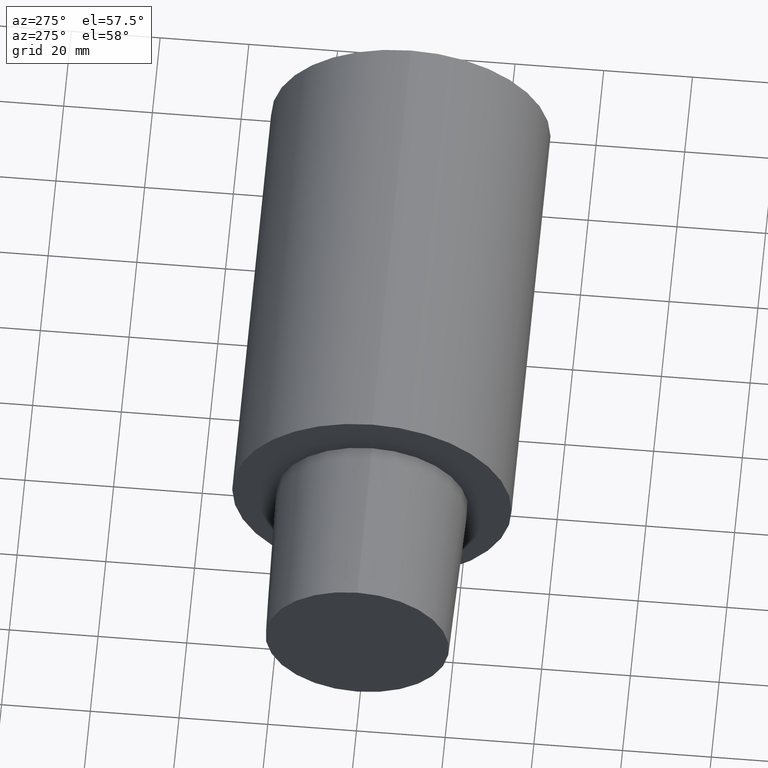
[diagram: clean part render]
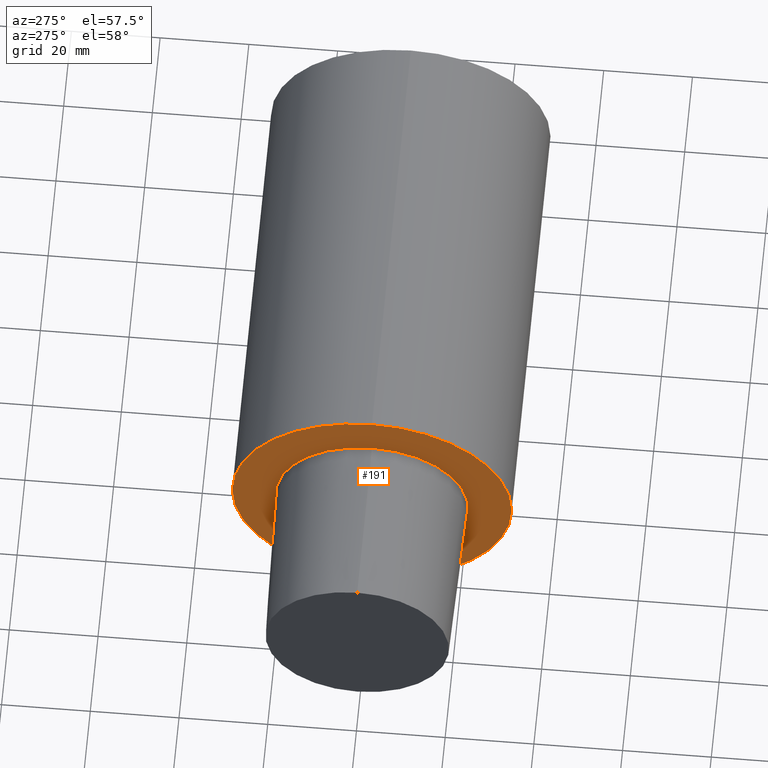
[diagram: same view with one face highlighted and labeled with its STEP entity id]
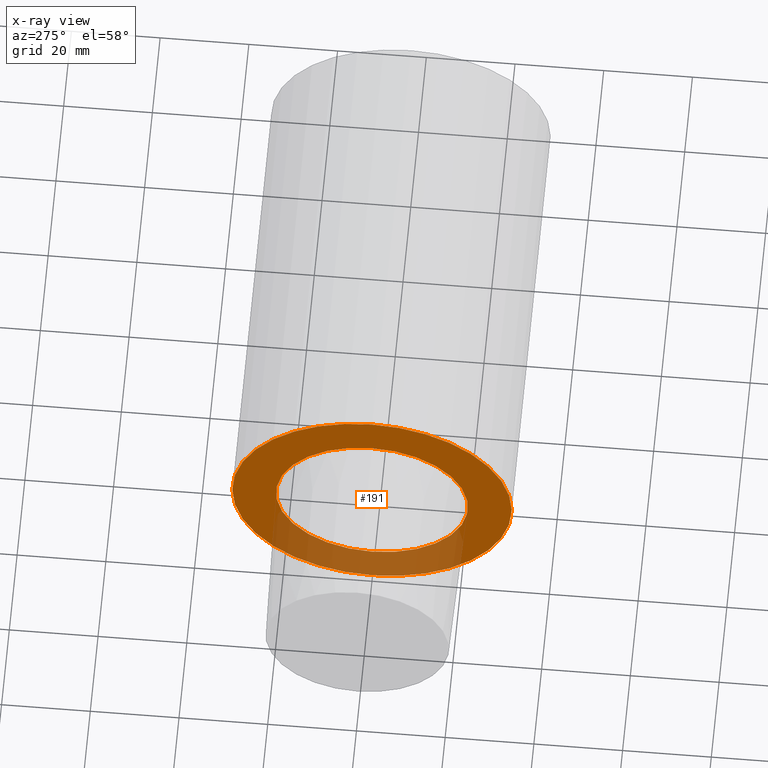
[diagram: x-ray of the same camera — body ghosted, the highlighted face saturated]
A machine part, auxiliary view. The second image highlights one B-rep face of the part: STEP entity #191.
The next image is the same camera in x-ray: the body ghosted, the highlighted face saturated — about 30% of this face is hidden behind the body in this view.
In plain terms, the highlighted planar face has unit normal (1, 0, 0).
Its self-contained STEP definition (entity closure, byte-faithful):
#3 = DIRECTION ( 'NONE',  ( 0.000000000000000000, 0.000000000000000000, 1.000000000000000000 ) ) ;
#6 = AXIS2_PLACEMENT_3D ( 'NONE', #7, #147, #44 ) ;
#7 = CARTESIAN_POINT ( 'NONE',  ( 0.000000000000000000, 31.49999996787000001, 0.000000000000000000 ) ) ;
#18 = ORIENTED_EDGE ( 'NONE', *, *, #226, .T. ) ;
#29 = FACE_OUTER_BOUND ( 'NONE', #151, .T. ) ;
#34 = ORIENTED_EDGE ( 'NONE', *, *, #110, .F. ) ;
#41 = DIRECTION ( 'NONE',  ( -1.000000000000000000, 0.000000000000000000, 0.000000000000000000 ) ) ;
#42 = CARTESIAN_POINT ( 'NONE',  ( 0.000000000000000000, 0.000000000000000000, 0.000000000000000000 ) ) ;
#44 = DIRECTION ( 'NONE',  ( 0.000000000000000000, 1.000000000000000000, 0.000000000000000000 ) ) ;
#60 = CARTESIAN_POINT ( 'NONE',  ( 0.000000000000000000, 0.000000000000000000, -21.63061196907898065 ) ) ;
#62 = CARTESIAN_POINT ( 'NONE',  ( 0.000000000000000000, 0.000000000000000000, 0.000000000000000000 ) ) ;
#79 = VERTEX_POINT ( 'NONE', #167 ) ;
#88 = DIRECTION ( 'NONE',  ( 0.000000000000000000, 0.000000000000000000, 1.000000000000000000 ) ) ;
#101 = DIRECTION ( 'NONE',  ( 0.000000000000000000, 0.000000000000000000, 1.000000000000000000 ) ) ;
#103 = CIRCLE ( 'NONE', #194, 31.49999996787000001 ) ;
#110 = EDGE_CURVE ( 'NONE', #174, #112, #210, .T. ) ;
#112 = VERTEX_POINT ( 'NONE', #145 ) ;
#115 = VERTEX_POINT ( 'NONE', #198 ) ;
#137 = EDGE_LOOP ( 'NONE', ( #34, #172 ) ) ;
#143 = CARTESIAN_POINT ( 'NONE',  ( 0.000000000000000000, 0.000000000000000000, 0.000000000000000000 ) ) ;
#145 = CARTESIAN_POINT ( 'NONE',  ( 0.000000000000000000, 2.648985971153096932E-15, 21.63061196907898065 ) ) ;
#147 = DIRECTION ( 'NONE',  ( 1.000000000000000000, 0.000000000000000000, 0.000000000000000000 ) ) ;
#151 = EDGE_LOOP ( 'NONE', ( #18, #255 ) ) ;
#157 = DIRECTION ( 'NONE',  ( -1.000000000000000000, 0.000000000000000000, 0.000000000000000000 ) ) ;
#159 = AXIS2_PLACEMENT_3D ( 'NONE', #42, #41, #101 ) ;
#162 = PLANE ( 'NONE',  #6 ) ;
#167 = CARTESIAN_POINT ( 'NONE',  ( 0.000000000000000000, 0.000000000000000000, 31.49999996787000001 ) ) ;
#170 = EDGE_CURVE ( 'NONE', #112, #174, #202, .T. ) ;
#172 = ORIENTED_EDGE ( 'NONE', *, *, #170, .F. ) ;
#174 = VERTEX_POINT ( 'NONE', #60 ) ;
#177 = AXIS2_PLACEMENT_3D ( 'NONE', #204, #245, #88 ) ;
#182 = FACE_BOUND ( 'NONE', #137, .T. ) ;
#184 = EDGE_CURVE ( 'NONE', #115, #79, #103, .T. ) ;
#191 = ADVANCED_FACE ( 'NONE', ( #182, #29 ), #162, .F. ) ;
#194 = AXIS2_PLACEMENT_3D ( 'NONE', #143, #223, #3 ) ;
#198 = CARTESIAN_POINT ( 'NONE',  ( 0.000000000000000000, 3.857637413379370248E-15, -31.49999996787000001 ) ) ;
#200 = DIRECTION ( 'NONE',  ( 0.000000000000000000, 0.000000000000000000, 1.000000000000000000 ) ) ;
#202 = CIRCLE ( 'NONE', #159, 21.63061196907898065 ) ;
#204 = CARTESIAN_POINT ( 'NONE',  ( 0.000000000000000000, 0.000000000000000000, 0.000000000000000000 ) ) ;
#208 = CIRCLE ( 'NONE', #177, 31.49999996787000001 ) ;
#210 = CIRCLE ( 'NONE', #249, 21.63061196907898065 ) ;
#223 = DIRECTION ( 'NONE',  ( -1.000000000000000000, 0.000000000000000000, 0.000000000000000000 ) ) ;
#226 = EDGE_CURVE ( 'NONE', #79, #115, #208, .T. ) ;
#245 = DIRECTION ( 'NONE',  ( -1.000000000000000000, 0.000000000000000000, 0.000000000000000000 ) ) ;
#249 = AXIS2_PLACEMENT_3D ( 'NONE', #62, #157, #200 ) ;
#255 = ORIENTED_EDGE ( 'NONE', *, *, #184, .T. ) ;